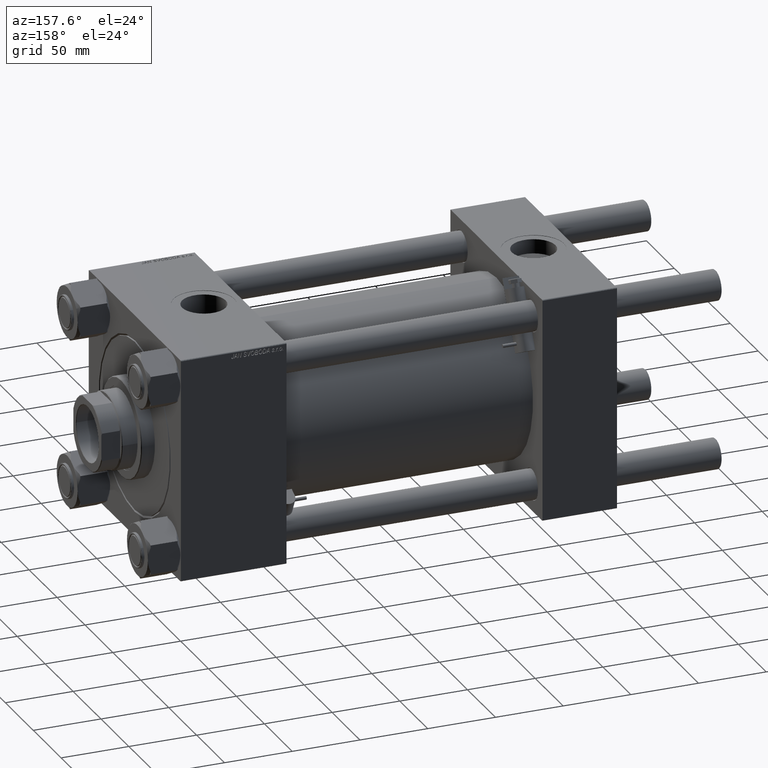
[diagram: clean part render]
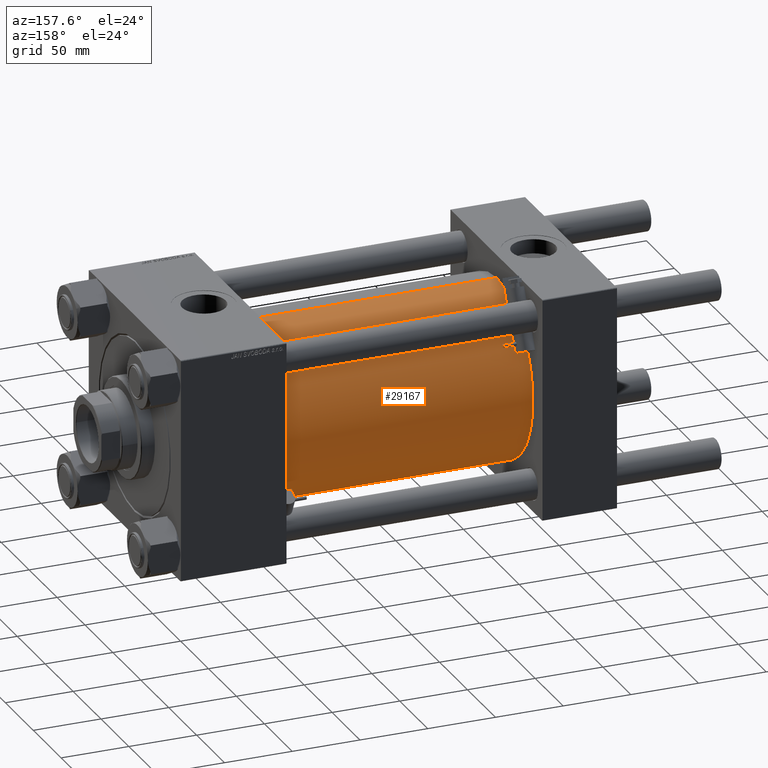
[diagram: same view with one face highlighted and labeled with its STEP entity id]
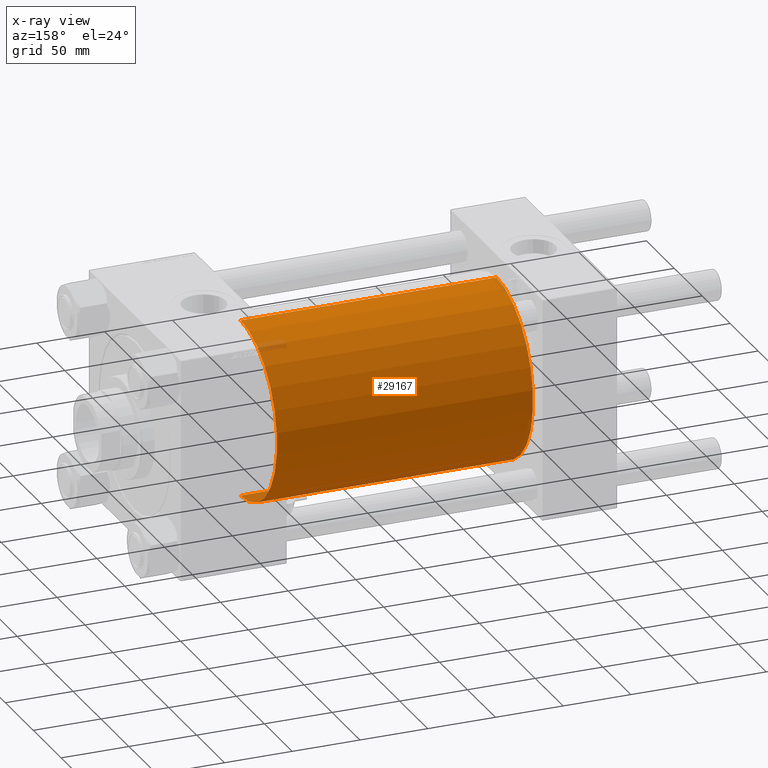
[diagram: x-ray of the same camera — body ghosted, the highlighted face saturated]
A machine part, auxiliary view. The second image highlights one B-rep face of the part: STEP entity #29167.
The next image is the same camera in x-ray: the body ghosted, the highlighted face saturated — about 1% of this face is hidden behind the body in this view.
In plain terms, the highlighted cylindrical surface (partial cylindrical patch) has radius 65.5 mm, axis along (-1, -0, -0).
Its self-contained STEP definition (entity closure, byte-faithful):
#491 = ORIENTED_EDGE ( 'NONE', *, *, #43241, .T. ) ;
#2827 = ORIENTED_EDGE ( 'NONE', *, *, #8629, .F. ) ;
#3251 = VERTEX_POINT ( 'NONE', #28209 ) ;
#6449 = VECTOR ( 'NONE', #18888, 1000.000000000000000 ) ;
#7325 = DIRECTION ( 'NONE',  ( 0.000000000000000000, 0.000000000000000000, 1.000000000000000000 ) ) ;
#8161 = DIRECTION ( 'NONE',  ( 1.000000000000000000, 0.000000000000000000, 0.000000000000000000 ) ) ;
#8629 = EDGE_CURVE ( 'NONE', #14832, #32488, #10242, .T. ) ;
#10242 = CIRCLE ( 'NONE', #12729, 65.50000000000001421 ) ;
#10331 = AXIS2_PLACEMENT_3D ( 'NONE', #23440, #31486, #7325 ) ;
#11924 = FACE_OUTER_BOUND ( 'NONE', #39949, .T. ) ;
#12729 = AXIS2_PLACEMENT_3D ( 'NONE', #15720, #8161, #51319 ) ;
#14832 = VERTEX_POINT ( 'NONE', #48160 ) ;
#15720 = CARTESIAN_POINT ( 'NONE',  ( 244.0000000000000000, 0.000000000000000000, 0.000000000000000000 ) ) ;
#18633 = CARTESIAN_POINT ( 'NONE',  ( 244.0000000000000000, 8.021436534415166404E-15, -65.50000000000001421 ) ) ;
#18888 = DIRECTION ( 'NONE',  ( -1.000000000000000000, -0.000000000000000000, -0.000000000000000000 ) ) ;
#19498 = VECTOR ( 'NONE', #32018, 1000.000000000000000 ) ;
#22660 = EDGE_CURVE ( 'NONE', #14832, #3251, #35241, .T. ) ;
#23440 = CARTESIAN_POINT ( 'NONE',  ( 54.99999999999999289, 0.000000000000000000, 0.000000000000000000 ) ) ;
#25454 = VERTEX_POINT ( 'NONE', #43716 ) ;
#27772 = CARTESIAN_POINT ( 'NONE',  ( 244.0000000000000000, 0.000000000000000000, 0.000000000000000000 ) ) ;
#28209 = CARTESIAN_POINT ( 'NONE',  ( 54.99999999999999289, 8.021436534415166404E-15, -65.50000000000001421 ) ) ;
#28278 = CYLINDRICAL_SURFACE ( 'NONE', #37348, 65.50000000000001421 ) ;
#28538 = DIRECTION ( 'NONE',  ( -1.000000000000000000, -0.000000000000000000, -0.000000000000000000 ) ) ;
#28587 = CIRCLE ( 'NONE', #10331, 65.50000000000001421 ) ;
#29167 = ADVANCED_FACE ( 'NONE', ( #11924 ), #28278, .T. ) ;
#29833 = ORIENTED_EDGE ( 'NONE', *, *, #47357, .F. ) ;
#31486 = DIRECTION ( 'NONE',  ( 1.000000000000000000, -0.000000000000000000, -0.000000000000000000 ) ) ;
#31762 = LINE ( 'NONE', #47616, #19498 ) ;
#32018 = DIRECTION ( 'NONE',  ( -1.000000000000000000, -0.000000000000000000, -0.000000000000000000 ) ) ;
#32488 = VERTEX_POINT ( 'NONE', #50885 ) ;
#34700 = ORIENTED_EDGE ( 'NONE', *, *, #22660, .T. ) ;
#35241 = LINE ( 'NONE', #18633, #6449 ) ;
#37348 = AXIS2_PLACEMENT_3D ( 'NONE', #27772, #28538, #44137 ) ;
#39949 = EDGE_LOOP ( 'NONE', ( #2827, #34700, #491, #29833 ) ) ;
#43241 = EDGE_CURVE ( 'NONE', #3251, #25454, #28587, .T. ) ;
#43716 = CARTESIAN_POINT ( 'NONE',  ( 54.99999999999999289, 0.000000000000000000, 65.50000000000001421 ) ) ;
#44137 = DIRECTION ( 'NONE',  ( 0.000000000000000000, 0.000000000000000000, 1.000000000000000000 ) ) ;
#47357 = EDGE_CURVE ( 'NONE', #32488, #25454, #31762, .T. ) ;
#47616 = CARTESIAN_POINT ( 'NONE',  ( 244.0000000000000000, 0.000000000000000000, 65.50000000000001421 ) ) ;
#48160 = CARTESIAN_POINT ( 'NONE',  ( 244.0000000000000000, 8.021436534415166404E-15, -65.50000000000001421 ) ) ;
#50885 = CARTESIAN_POINT ( 'NONE',  ( 244.0000000000000000, 0.000000000000000000, 65.50000000000001421 ) ) ;
#51319 = DIRECTION ( 'NONE',  ( 0.000000000000000000, 0.000000000000000000, -1.000000000000000000 ) ) ;